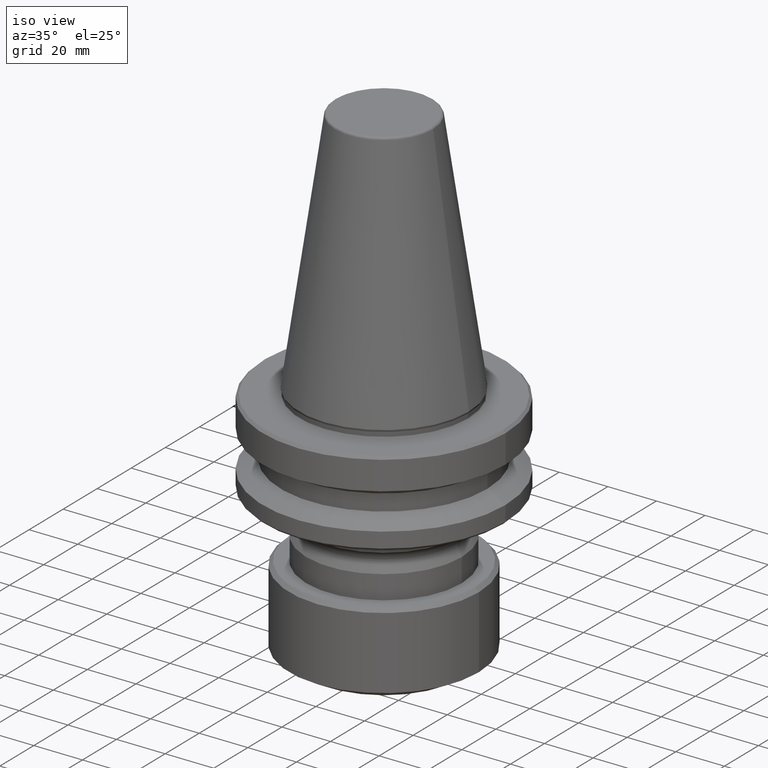
[diagram: clean part render]
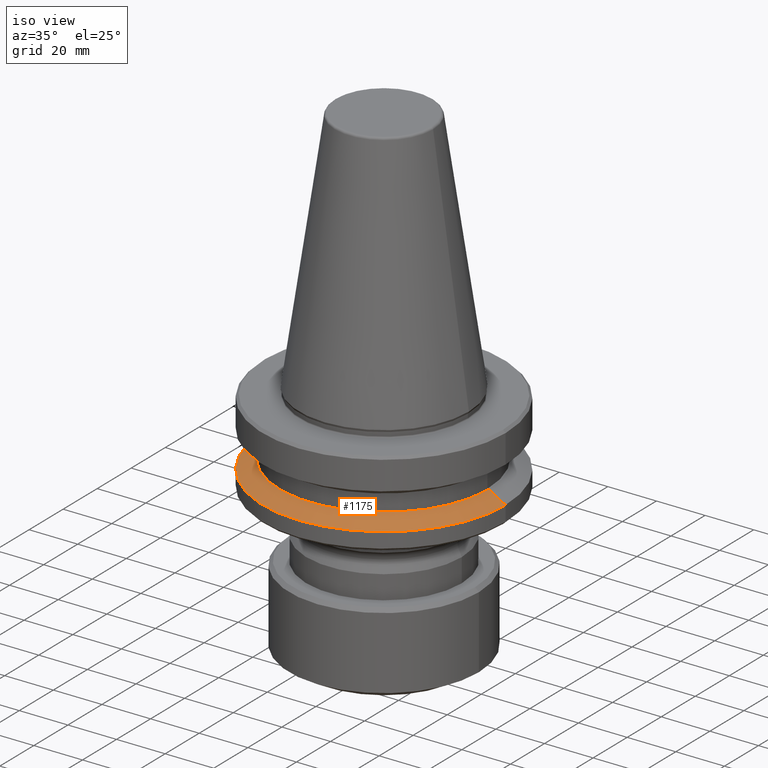
[diagram: same view with one face highlighted and labeled with its STEP entity id]
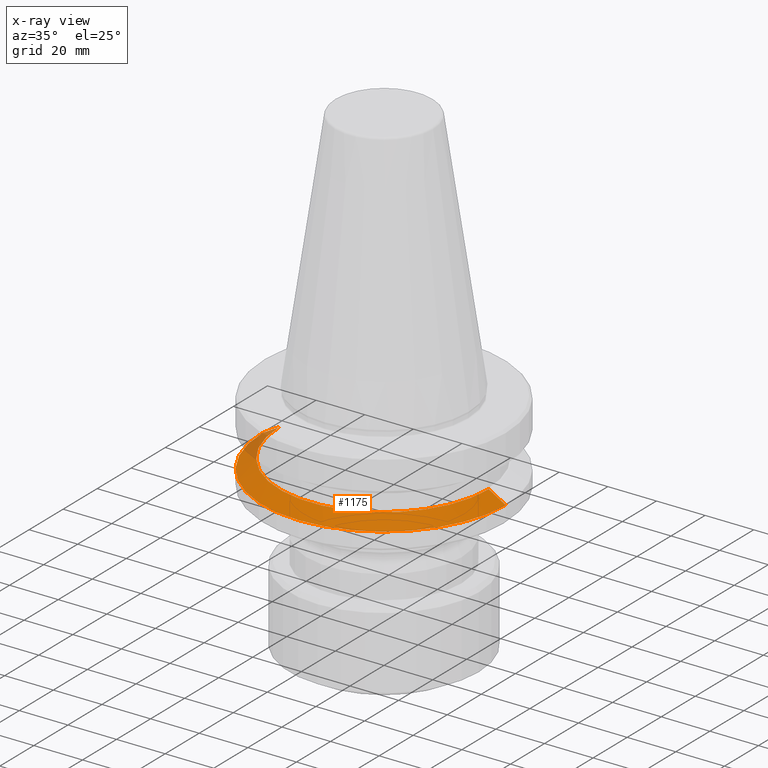
[diagram: x-ray of the same camera — body ghosted, the highlighted face saturated]
A machine part, iso view. The second image highlights one B-rep face of the part: STEP entity #1175.
The next image is the same camera in x-ray: the body ghosted, the highlighted face saturated — about 5% of this face is hidden behind the body in this view.
In plain terms, the highlighted conical surface has half-angle 60 deg.
Its self-contained STEP definition (entity closure, byte-faithful):
#39 = EDGE_CURVE ( 'NONE', #272, #866, #368, .T. ) ;
#54 = DIRECTION ( 'NONE',  ( -0.0000000000000000000, -0.0000000000000000000, 1.000000000000000000 ) ) ;
#84 = EDGE_CURVE ( 'NONE', #140, #91, #295, .T. ) ;
#91 = VERTEX_POINT ( 'NONE', #1383 ) ;
#115 = CARTESIAN_POINT ( 'NONE',  ( 0.0000000000000000000, 0.0000000000000000000, -26.70000000000061400 ) ) ;
#136 = VECTOR ( 'NONE', #369, 1000.000000000000000 ) ;
#140 = VERTEX_POINT ( 'NONE', #1297 ) ;
#259 = AXIS2_PLACEMENT_3D ( 'NONE', #412, #377, #521 ) ;
#268 = EDGE_CURVE ( 'NONE', #272, #140, #349, .T. ) ;
#270 = DIRECTION ( 'NONE',  ( 1.000000000000000000, 0.0000000000000000000, 0.0000000000000000000 ) ) ;
#272 = VERTEX_POINT ( 'NONE', #299 ) ;
#295 = CIRCLE ( 'NONE', #259, 50.00000000000015600 ) ;
#299 = CARTESIAN_POINT ( 'NONE',  ( -43.07217782648964300, 0.0000000000000000000, -26.70000000000061400 ) ) ;
#313 = CARTESIAN_POINT ( 'NONE',  ( 43.07217782648964300, 5.699027233244199500E-015, -26.70000000000061400 ) ) ;
#326 = AXIS2_PLACEMENT_3D ( 'NONE', #766, #648, #670 ) ;
#349 = LINE ( 'NONE', #531, #1041 ) ;
#368 = CIRCLE ( 'NONE', #1245, 43.07217782648964300 ) ;
#369 = DIRECTION ( 'NONE',  ( 0.8660254037844390400, 1.060575238724907400E-016, -0.4999999999999993300 ) ) ;
#377 = DIRECTION ( 'NONE',  ( -0.0000000000000000000, -0.0000000000000000000, 1.000000000000000000 ) ) ;
#412 = CARTESIAN_POINT ( 'NONE',  ( 0.0000000000000000000, 0.0000000000000000000, -30.69977999677475800 ) ) ;
#521 = DIRECTION ( 'NONE',  ( 1.000000000000000000, 0.0000000000000000000, 0.0000000000000000000 ) ) ;
#531 = CARTESIAN_POINT ( 'NONE',  ( -50.00000000000015600, 0.0000000000000000000, -30.69977999677475800 ) ) ;
#578 = ORIENTED_EDGE ( 'NONE', *, *, #1050, .F. ) ;
#648 = DIRECTION ( 'NONE',  ( 0.0000000000000000000, 0.0000000000000000000, -1.000000000000000000 ) ) ;
#660 = ORIENTED_EDGE ( 'NONE', *, *, #39, .F. ) ;
#670 = DIRECTION ( 'NONE',  ( -1.000000000000000000, 0.0000000000000000000, 0.0000000000000000000 ) ) ;
#703 = LINE ( 'NONE', #1074, #136 ) ;
#766 = CARTESIAN_POINT ( 'NONE',  ( 0.0000000000000000000, 0.0000000000000000000, -30.69977999677475800 ) ) ;
#775 = CONICAL_SURFACE ( 'NONE', #326, 50.00000000000015600, 1.047197551196598500 ) ;
#810 = FACE_OUTER_BOUND ( 'NONE', #1194, .T. ) ;
#866 = VERTEX_POINT ( 'NONE', #313 ) ;
#1002 = ORIENTED_EDGE ( 'NONE', *, *, #268, .T. ) ;
#1041 = VECTOR ( 'NONE', #1231, 1000.000000000000000 ) ;
#1050 = EDGE_CURVE ( 'NONE', #866, #91, #703, .T. ) ;
#1074 = CARTESIAN_POINT ( 'NONE',  ( 50.00000000000015600, 6.123233995736785000E-015, -30.69977999677475800 ) ) ;
#1111 = ORIENTED_EDGE ( 'NONE', *, *, #84, .T. ) ;
#1175 = ADVANCED_FACE ( 'NONE', ( #810 ), #775, .T. ) ;
#1194 = EDGE_LOOP ( 'NONE', ( #578, #660, #1002, #1111 ) ) ;
#1231 = DIRECTION ( 'NONE',  ( -0.8660254037844390400, 0.0000000000000000000, -0.4999999999999993300 ) ) ;
#1245 = AXIS2_PLACEMENT_3D ( 'NONE', #115, #54, #270 ) ;
#1297 = CARTESIAN_POINT ( 'NONE',  ( -50.00000000000015600, 6.123233995736785000E-015, -30.69977999677475800 ) ) ;
#1383 = CARTESIAN_POINT ( 'NONE',  ( 50.00000000000015600, 0.0000000000000000000, -30.69977999677475800 ) ) ;